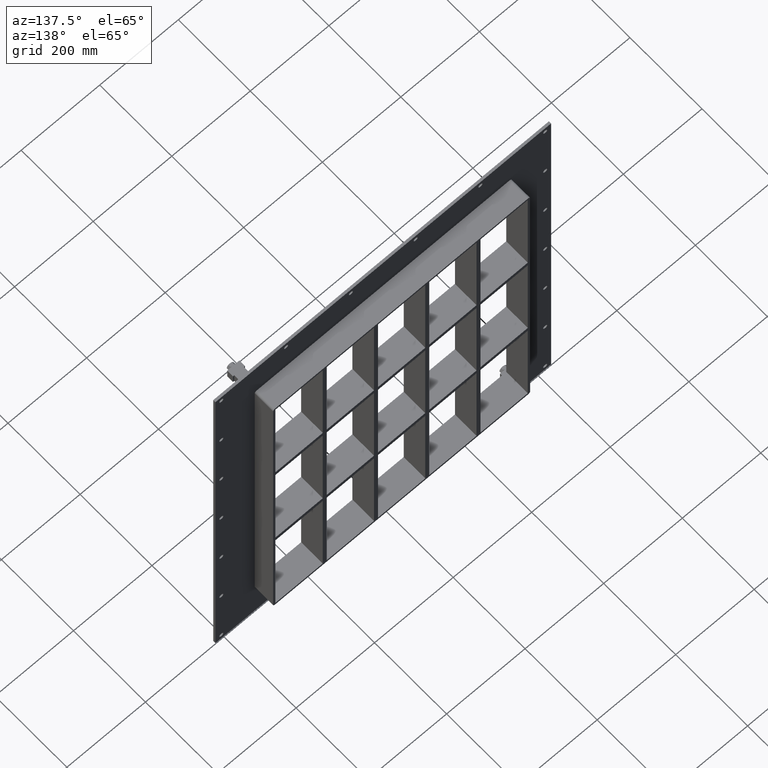
[diagram: clean part render]
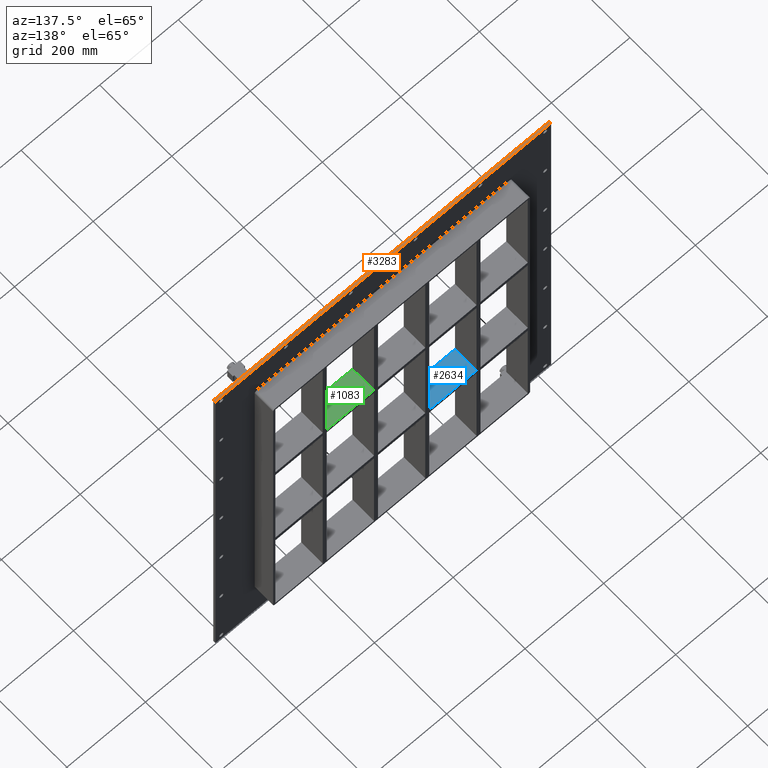
[diagram: same view with three faces highlighted in distinct colors, each labeled with its STEP entity id]
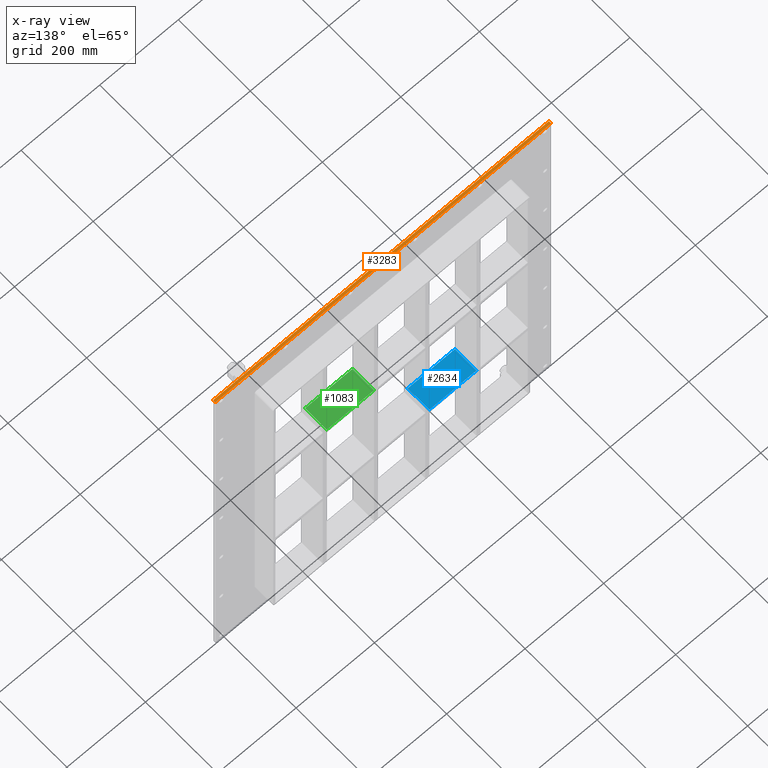
[diagram: x-ray of the same camera — body ghosted, the three highlighted faces saturated]
A machine part, auxiliary view with three faces highlighted in distinct colors.
The next image is the same camera in x-ray (body ghosted, the three faces saturated) — at least one of them is partly hidden behind the body in this view.
Their STEP definitions:

[orange] entity #3283 — the highlighted planar face has unit normal (0, 0, 1).
#2869=CARTESIAN_POINT('',(-427.25,6.000000000000001,535.00000000000011));
#2870=VERTEX_POINT('',#2869);
#2871=CARTESIAN_POINT('',(427.25,6.000000000000001,535.00000000000011));
#2872=VERTEX_POINT('',#2871);
#2873=CARTESIAN_POINT('',(-427.25,6.000000000000001,535.00000000000011));
#2874=DIRECTION('',(1.0,0.0,0.0));
#2875=VECTOR('',#2874,854.5);
#2876=LINE('',#2873,#2875);
#2877=EDGE_CURVE('',#2870,#2872,#2876,.T.);
#3045=CARTESIAN_POINT('',(-427.25,0.0,535.00000000000011));
#3046=VERTEX_POINT('',#3045);
#3047=CARTESIAN_POINT('',(427.25,0.0,535.00000000000011));
#3048=VERTEX_POINT('',#3047);
#3049=CARTESIAN_POINT('',(-427.25,0.0,535.00000000000011));
#3050=DIRECTION('',(1.0,0.0,0.0));
#3051=VECTOR('',#3050,854.5);
#3052=LINE('',#3049,#3051);
#3053=EDGE_CURVE('',#3046,#3048,#3052,.T.);
#3222=CARTESIAN_POINT('',(-427.25,0.0,535.00000000000011));
#3223=DIRECTION('',(0.0,1.0,0.0));
#3224=VECTOR('',#3223,6.000000000000001);
#3225=LINE('',#3222,#3224);
#3226=EDGE_CURVE('',#3046,#2870,#3225,.T.);
#3263=CARTESIAN_POINT('',(427.25,0.0,535.00000000000011));
#3264=DIRECTION('',(0.0,1.0,0.0));
#3265=VECTOR('',#3264,6.000000000000001);
#3266=LINE('',#3263,#3265);
#3267=EDGE_CURVE('',#3048,#2872,#3266,.T.);
#3272=CARTESIAN_POINT('',(-427.25,0.0,535.00000000000011));
#3273=DIRECTION('',(0.0,0.0,1.0));
#3274=DIRECTION('',(1.0,0.0,0.0));
#3275=AXIS2_PLACEMENT_3D('',#3272,#3273,#3274);
#3276=PLANE('',#3275);
#3277=ORIENTED_EDGE('',*,*,#3053,.T.);
#3278=ORIENTED_EDGE('',*,*,#3267,.T.);
#3279=ORIENTED_EDGE('',*,*,#2877,.F.);
#3280=ORIENTED_EDGE('',*,*,#3226,.F.);
#3281=EDGE_LOOP('',(#3277,#3278,#3279,#3280));
#3282=FACE_OUTER_BOUND('',#3281,.T.);
#3283=ADVANCED_FACE('',(#3282),#3276,.T.);

[blue] entity #2634 — the highlighted planar face has unit normal (0, 0, 1).
#1662=CARTESIAN_POINT('',(-190.75000000000728,57.0,-139.00000000000091));
#1663=VERTEX_POINT('',#1662);
#1670=CARTESIAN_POINT('',(-70.249999999998863,57.0,-139.00000000000091));
#1671=VERTEX_POINT('',#1670);
#1672=CARTESIAN_POINT('',(-190.75000000000728,57.0,-139.00000000000091));
#1673=DIRECTION('',(1.0,0.0,0.0));
#1674=VECTOR('',#1673,120.50000000000844);
#1675=LINE('',#1672,#1674);
#1676=EDGE_CURVE('',#1663,#1671,#1675,.T.);
#2095=CARTESIAN_POINT('',(-70.249999999998863,-3.0,-139.00000000000091));
#2096=VERTEX_POINT('',#2095);
#2097=CARTESIAN_POINT('',(-70.249999999998877,-3.0,-139.00000000000091));
#2098=DIRECTION('',(0.0,1.0,0.0));
#2099=VECTOR('',#2098,60.0);
#2100=LINE('',#2097,#2099);
#2101=EDGE_CURVE('',#2096,#1671,#2100,.T.);
#2400=CARTESIAN_POINT('',(-190.75000000000728,-3.0,-139.00000000000091));
#2401=VERTEX_POINT('',#2400);
#2402=CARTESIAN_POINT('',(-190.75000000000728,-3.0,-139.00000000000091));
#2403=DIRECTION('',(1.0,0.0,0.0));
#2404=VECTOR('',#2403,120.50000000000844);
#2405=LINE('',#2402,#2404);
#2406=EDGE_CURVE('',#2401,#2096,#2405,.T.);
#2618=CARTESIAN_POINT('',(-321.24999999999721,-3.0,-139.00000000000091));
#2619=DIRECTION('',(0.0,0.0,1.0));
#2620=DIRECTION('',(1.0,0.0,0.0));
#2621=AXIS2_PLACEMENT_3D('',#2618,#2619,#2620);
#2622=PLANE('',#2621);
#2623=ORIENTED_EDGE('',*,*,#2101,.T.);
#2624=ORIENTED_EDGE('',*,*,#1676,.F.);
#2625=CARTESIAN_POINT('',(-190.75000000000728,-3.0,-139.00000000000091));
#2626=DIRECTION('',(0.0,1.0,0.0));
#2627=VECTOR('',#2626,60.0);
#2628=LINE('',#2625,#2627);
#2629=EDGE_CURVE('',#2401,#1663,#2628,.T.);
#2630=ORIENTED_EDGE('',*,*,#2629,.F.);
#2631=ORIENTED_EDGE('',*,*,#2406,.T.);
#2632=EDGE_LOOP('',(#2623,#2624,#2630,#2631));
#2633=FACE_OUTER_BOUND('',#2632,.T.);
#2634=ADVANCED_FACE('',(#2633),#2622,.T.);

[green] entity #1083 — the highlighted planar face has unit normal (0, 0, 1).
#1044=CARTESIAN_POINT('',(-321.24999999999721,-3.0,150.99999999999909));
#1045=DIRECTION('',(0.0,0.0,1.0));
#1046=DIRECTION('',(1.0,0.0,0.0));
#1047=AXIS2_PLACEMENT_3D('',#1044,#1045,#1046);
#1048=PLANE('',#1047);
#1049=CARTESIAN_POINT('',(190.75000000000117,57.0,150.99999999999909));
#1050=VERTEX_POINT('',#1049);
#1051=CARTESIAN_POINT('',(190.75000000000117,-3.0,150.99999999999909));
#1052=VERTEX_POINT('',#1051);
#1053=CARTESIAN_POINT('',(190.75000000000114,57.0,150.99999999999909));
#1054=DIRECTION('',(0.0,-1.0,0.0));
#1055=VECTOR('',#1054,60.0);
#1056=LINE('',#1053,#1055);
#1057=EDGE_CURVE('',#1050,#1052,#1056,.T.);
#1058=ORIENTED_EDGE('',*,*,#1057,.F.);
#1059=CARTESIAN_POINT('',(70.249999999992738,57.0,150.99999999999909));
#1060=VERTEX_POINT('',#1059);
#1061=CARTESIAN_POINT('',(70.249999999992781,57.0,150.99999999999909));
#1062=DIRECTION('',(1.0,0.0,0.0));
#1063=VECTOR('',#1062,120.50000000000841);
#1064=LINE('',#1061,#1063);
#1065=EDGE_CURVE('',#1060,#1050,#1064,.T.);
#1066=ORIENTED_EDGE('',*,*,#1065,.F.);
#1067=CARTESIAN_POINT('',(70.249999999992738,-3.0,150.99999999999909));
#1068=VERTEX_POINT('',#1067);
#1069=CARTESIAN_POINT('',(70.249999999992738,-3.0,150.99999999999909));
#1070=DIRECTION('',(0.0,1.0,0.0));
#1071=VECTOR('',#1070,60.0);
#1072=LINE('',#1069,#1071);
#1073=EDGE_CURVE('',#1068,#1060,#1072,.T.);
#1074=ORIENTED_EDGE('',*,*,#1073,.F.);
#1075=CARTESIAN_POINT('',(70.249999999992781,-3.0,150.99999999999909));
#1076=DIRECTION('',(1.0,0.0,0.0));
#1077=VECTOR('',#1076,120.50000000000841);
#1078=LINE('',#1075,#1077);
#1079=EDGE_CURVE('',#1068,#1052,#1078,.T.);
#1080=ORIENTED_EDGE('',*,*,#1079,.T.);
#1081=EDGE_LOOP('',(#1058,#1066,#1074,#1080));
#1082=FACE_OUTER_BOUND('',#1081,.T.);
#1083=ADVANCED_FACE('',(#1082),#1048,.T.);